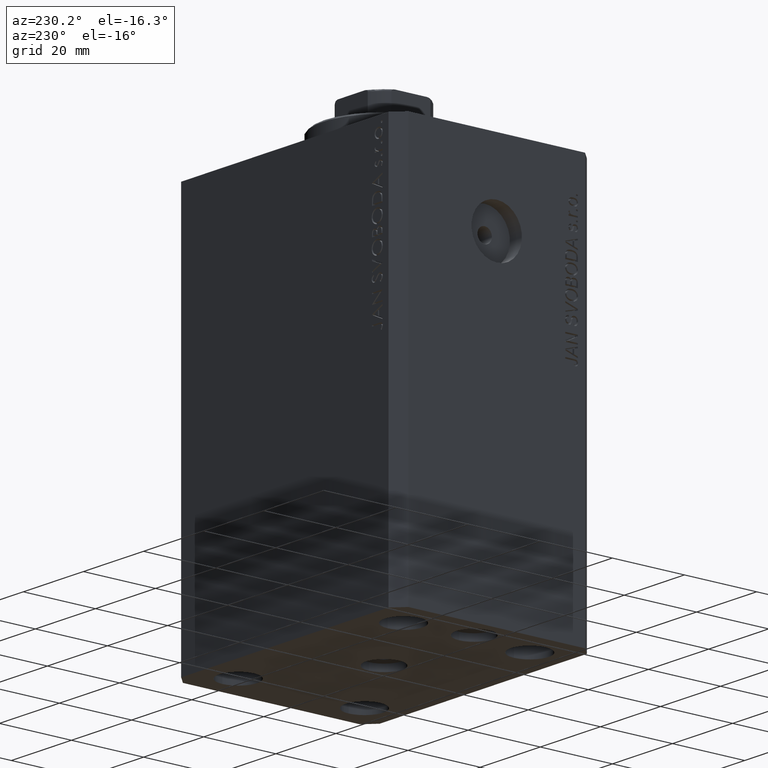
[diagram: clean part render]
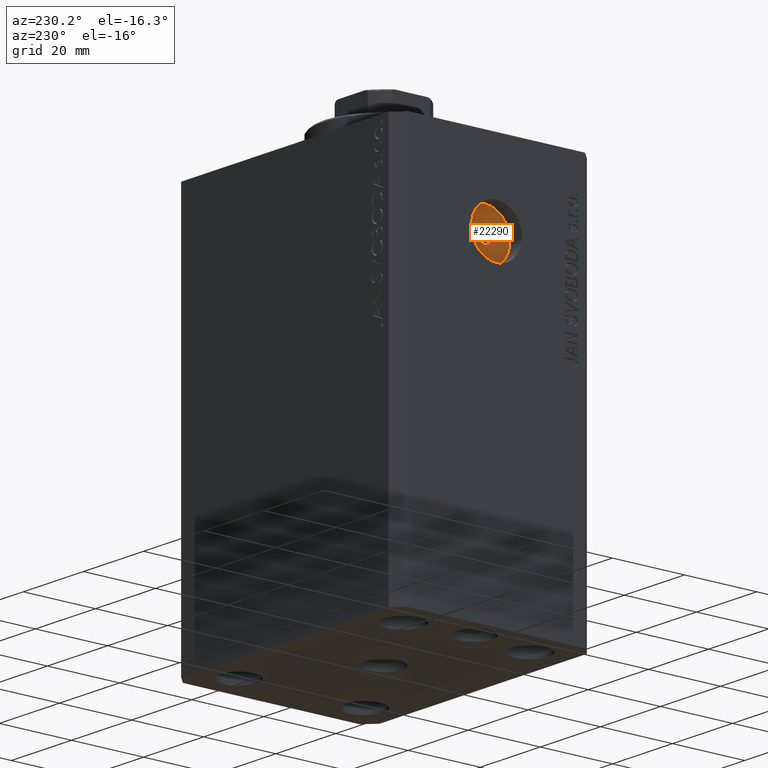
[diagram: same view with one face highlighted and labeled with its STEP entity id]
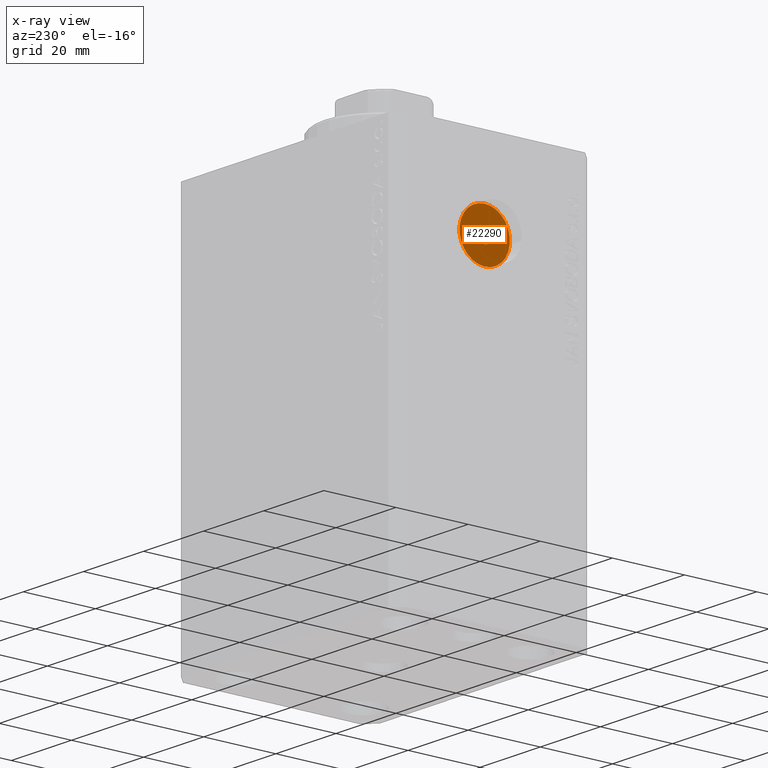
[diagram: x-ray of the same camera — body ghosted, the highlighted face saturated]
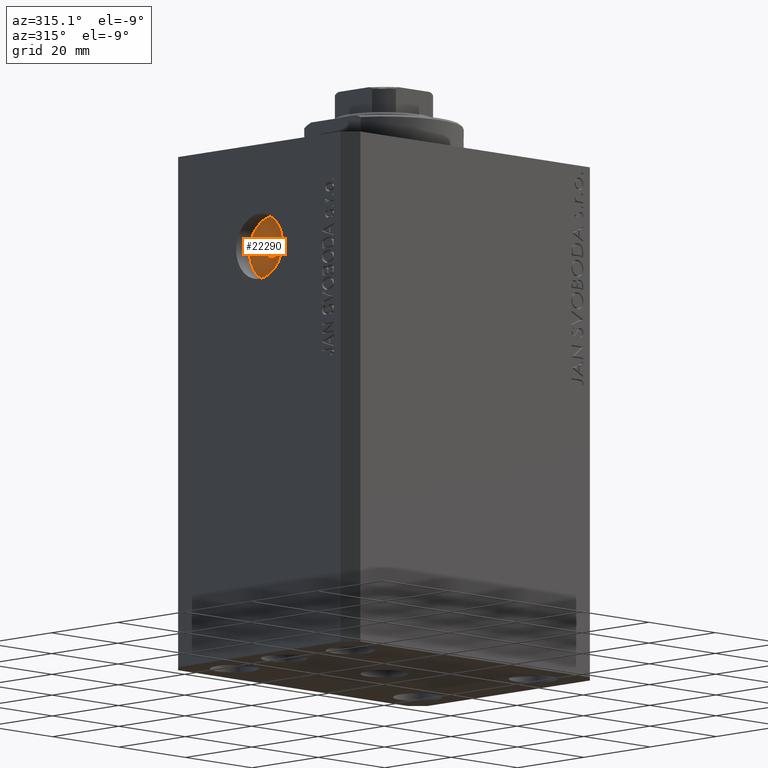
[diagram: same view with one face highlighted and labeled with its STEP entity id]
A machine part, auxiliary view. The second image highlights one B-rep face of the part: STEP entity #22290.
The next image is the same camera in x-ray: the body ghosted, the highlighted face saturated — about 0% of this face is hidden behind the body in this view.
A second angle (auxiliary view) of the same face is appended — the face is thin or edge-on in the first view.
In plain terms, the highlighted planar face has unit normal (-1, 0, 0).
Its self-contained STEP definition (entity closure, byte-faithful):
#58 = CARTESIAN_POINT ( 'NONE',  ( -33.49999999999998579, 2.449293598294706414E-16, -23.99999999999999645 ) ) ;
#573 = DIRECTION ( 'NONE',  ( 0.000000000000000000, 0.000000000000000000, 1.000000000000000000 ) ) ;
#730 = DIRECTION ( 'NONE',  ( 0.000000000000000000, 0.000000000000000000, 1.000000000000000000 ) ) ;
#1071 = FACE_BOUND ( 'NONE', #28831, .T. ) ;
#2091 = VERTEX_POINT ( 'NONE', #30107 ) ;
#4661 = VERTEX_POINT ( 'NONE', #58 ) ;
#5124 = FACE_OUTER_BOUND ( 'NONE', #37262, .T. ) ;
#5377 = CIRCLE ( 'NONE', #16897, 1.999999999999998224 ) ;
#5598 = CARTESIAN_POINT ( 'NONE',  ( -33.49999999999998579, 0.000000000000000000, -22.00000000000000000 ) ) ;
#6481 = AXIS2_PLACEMENT_3D ( 'NONE', #8495, #35792, #11433 ) ;
#7096 = CARTESIAN_POINT ( 'NONE',  ( -33.49999999999998579, 0.000000000000000000, -20.00000000000000000 ) ) ;
#8495 = CARTESIAN_POINT ( 'NONE',  ( -33.49999999999998579, 0.000000000000000000, -22.00000000000000000 ) ) ;
#9078 = VERTEX_POINT ( 'NONE', #42438 ) ;
#11063 = CARTESIAN_POINT ( 'NONE',  ( -33.49999999999998579, 0.000000000000000000, -22.00000000000000000 ) ) ;
#11170 = DIRECTION ( 'NONE',  ( -1.000000000000000000, 0.000000000000000000, 0.000000000000000000 ) ) ;
#11320 = DIRECTION ( 'NONE',  ( -1.000000000000000000, 0.000000000000000000, 0.000000000000000000 ) ) ;
#11433 = DIRECTION ( 'NONE',  ( 0.000000000000000000, 0.000000000000000000, 1.000000000000000000 ) ) ;
#13014 = AXIS2_PLACEMENT_3D ( 'NONE', #11063, #31145, #27998 ) ;
#16897 = AXIS2_PLACEMENT_3D ( 'NONE', #24944, #11170, #573 ) ;
#18897 = AXIS2_PLACEMENT_3D ( 'NONE', #42684, #11320, #730 ) ;
#18932 = CIRCLE ( 'NONE', #30456, 1.999999999999998224 ) ;
#21639 = ORIENTED_EDGE ( 'NONE', *, *, #28931, .T. ) ;
#22060 = PLANE ( 'NONE',  #6481 ) ;
#22290 = ADVANCED_FACE ( 'NONE', ( #1071, #5124 ), #22060, .T. ) ;
#23195 = DIRECTION ( 'NONE',  ( -1.000000000000000000, 0.000000000000000000, 0.000000000000000000 ) ) ;
#23204 = EDGE_CURVE ( 'NONE', #9078, #2091, #30320, .T. ) ;
#24944 = CARTESIAN_POINT ( 'NONE',  ( -33.49999999999998579, 0.000000000000000000, -22.00000000000000000 ) ) ;
#27998 = DIRECTION ( 'NONE',  ( 0.000000000000000000, 0.000000000000000000, 1.000000000000000000 ) ) ;
#28831 = EDGE_LOOP ( 'NONE', ( #33047, #41599 ) ) ;
#28931 = EDGE_CURVE ( 'NONE', #2091, #9078, #38312, .T. ) ;
#29056 = ORIENTED_EDGE ( 'NONE', *, *, #23204, .T. ) ;
#30107 = CARTESIAN_POINT ( 'NONE',  ( -33.49999999999998579, 0.000000000000000000, -15.00000000000000000 ) ) ;
#30144 = EDGE_CURVE ( 'NONE', #43695, #4661, #18932, .T. ) ;
#30320 = CIRCLE ( 'NONE', #13014, 6.999999999999999112 ) ;
#30456 = AXIS2_PLACEMENT_3D ( 'NONE', #5598, #23195, #39884 ) ;
#31145 = DIRECTION ( 'NONE',  ( -1.000000000000000000, 0.000000000000000000, 0.000000000000000000 ) ) ;
#33047 = ORIENTED_EDGE ( 'NONE', *, *, #30144, .F. ) ;
#35792 = DIRECTION ( 'NONE',  ( -1.000000000000000000, 0.000000000000000000, 0.000000000000000000 ) ) ;
#37262 = EDGE_LOOP ( 'NONE', ( #21639, #29056 ) ) ;
#38312 = CIRCLE ( 'NONE', #18897, 6.999999999999999112 ) ;
#39496 = EDGE_CURVE ( 'NONE', #4661, #43695, #5377, .T. ) ;
#39884 = DIRECTION ( 'NONE',  ( 0.000000000000000000, 0.000000000000000000, 1.000000000000000000 ) ) ;
#41599 = ORIENTED_EDGE ( 'NONE', *, *, #39496, .F. ) ;
#42438 = CARTESIAN_POINT ( 'NONE',  ( -33.49999999999998579, 8.572527594031474176E-16, -28.99999999999999645 ) ) ;
#42684 = CARTESIAN_POINT ( 'NONE',  ( -33.49999999999998579, 0.000000000000000000, -22.00000000000000000 ) ) ;
#43695 = VERTEX_POINT ( 'NONE', #7096 ) ;